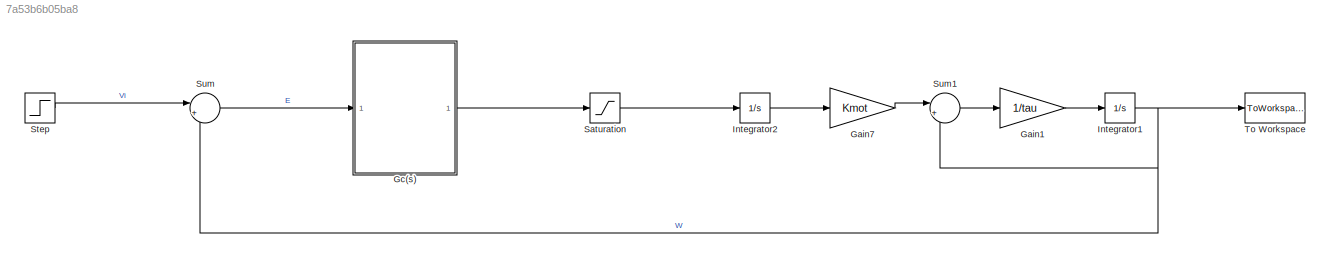
MODEL slx_7a53b6b05ba8
KIND model
CONFIG AbsTol = auto
CONFIG EnableMultiTasking = off
CONFIG FixedStep = auto
CONFIG MaxStep = 0.001
CONFIG MinStep = auto
CONFIG RelTol = 1e-3
CONFIG SampleTimeConstraint = Unconstrained
CONFIG Solver = ode45
CONFIG SolverName = ode45
CONFIG StartTime = 0.0
CONFIG StopTime = 3
BLOCK [Gain] Gain1
  Gain = 1/tau
  OutDataTypeStr = Inherit: Inherit via internal rule
  ParamDataTypeStr = Inherit: Inherit via internal rule
  SaturateOnIntegerOverflow = off
BLOCK [Gain] Gain7
  Gain = Kmot
  OutDataTypeStr = Inherit: Inherit via internal rule
  ParamDataTypeStr = Inherit: Inherit via internal rule
  SaturateOnIntegerOverflow = off
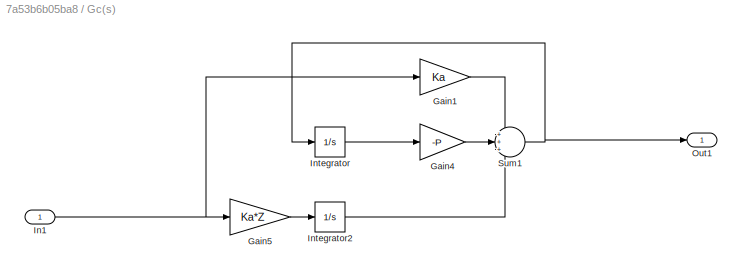
BLOCK [SubSystem] Gc(s)
  Ports = [1, 1]
  RequestExecContextInheritance = off
  Variant = off
BLOCK [Gain] Gc(s)/Gain1
  Gain = Ka
  OutDataTypeStr = Inherit: Inherit via internal rule
  ParamDataTypeStr = Inherit: Inherit via internal rule
  SaturateOnIntegerOverflow = off
BLOCK [Gain] Gc(s)/Gain4
  Gain = -P
  OutDataTypeStr = Inherit: Inherit via internal rule
  ParamDataTypeStr = Inherit: Inherit via internal rule
  SaturateOnIntegerOverflow = off
BLOCK [Gain] Gc(s)/Gain5
  Gain = Ka*Z
  OutDataTypeStr = Inherit: Inherit via internal rule
  ParamDataTypeStr = Inherit: Inherit via internal rule
  SaturateOnIntegerOverflow = off
BLOCK [Inport] Gc(s)/In1
  IconDisplay = Port number
BLOCK [Integrator] Gc(s)/Integrator
  Ports = [1, 1]
BLOCK [Integrator] Gc(s)/Integrator2
  Ports = [1, 1]
BLOCK [Outport] Gc(s)/Out1
  IconDisplay = Port number
BLOCK [Sum] Gc(s)/Sum1
  IconShape = round
  InputSameDT = off
  Inputs = +++
  OutDataTypeStr = Inherit: Inherit via internal rule
  Ports = [3, 1]
  SaturateOnIntegerOverflow = off
BLOCK [Integrator] Integrator1
  Ports = [1, 1]
BLOCK [Integrator] Integrator2
  Ports = [1, 1]
BLOCK [Saturate] Saturation
  InputPortMap = u0
  LowerLimit = -10
  Ports = [1, 1]
  UpperLimit = 10
BLOCK [Step] Step
  After = 50
  SampleTime = 0
  Time = 0
BLOCK [Sum] Sum
  IconShape = round
  InputSameDT = off
  Inputs = |+-
  OutDataTypeStr = Inherit: Inherit via internal rule
  Ports = [2, 1]
  SaturateOnIntegerOverflow = off
BLOCK [Sum] Sum1
  IconShape = round
  InputSameDT = off
  Inputs = |+-
  OutDataTypeStr = Inherit: Inherit via internal rule
  Ports = [2, 1]
  SaturateOnIntegerOverflow = off
BLOCK [ToWorkspace] To Workspace
  FixptAsFi = on
  MaxDataPoints = inf
  Ports = [1]
  SampleTime = -1
  Save2DSignal = 3-D array (concatenate along third dimension)
  VariableName = V
LINE Gain1:1 -> Integrator1:1
LINE Gain7:1 -> Sum1:1
LINE Gc(s)/Gain1:1 -> Gc(s)/Sum1:1
LINE Gc(s)/Gain4:1 -> Gc(s)/Sum1:2
LINE Gc(s)/Gain5:1 -> Gc(s)/Integrator2:1
NET Gc(s)/In1:1 -> Gc(s)/Gain1:1, Gc(s)/Gain5:1
LINE Gc(s)/Integrator2:1 -> Gc(s)/Sum1:3
LINE Gc(s)/Integrator:1 -> Gc(s)/Gain4:1
NET Gc(s)/Sum1:1 -> Gc(s)/Integrator:1, Gc(s)/Out1:1
LINE Gc(s):1 -> Saturation:1
NET Integrator1:1 -> Sum1:2, Sum:2, To Workspace:1
LINE Integrator2:1 -> Gain7:1
LINE Saturation:1 -> Integrator2:1
LINE Step:1 -> Sum:1
LINE Sum1:1 -> Gain1:1
LINE Sum:1 -> Gc(s):1
note: NET lines group one-source signal fan-out (src -> all destinations, sorted); 1:1 wires keep LINE
